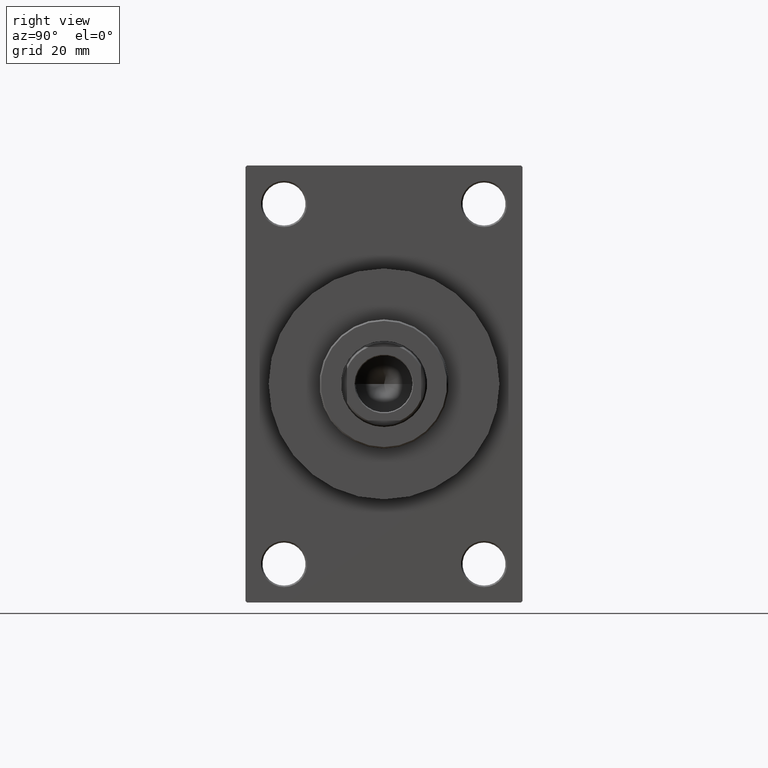
[diagram: clean part render]
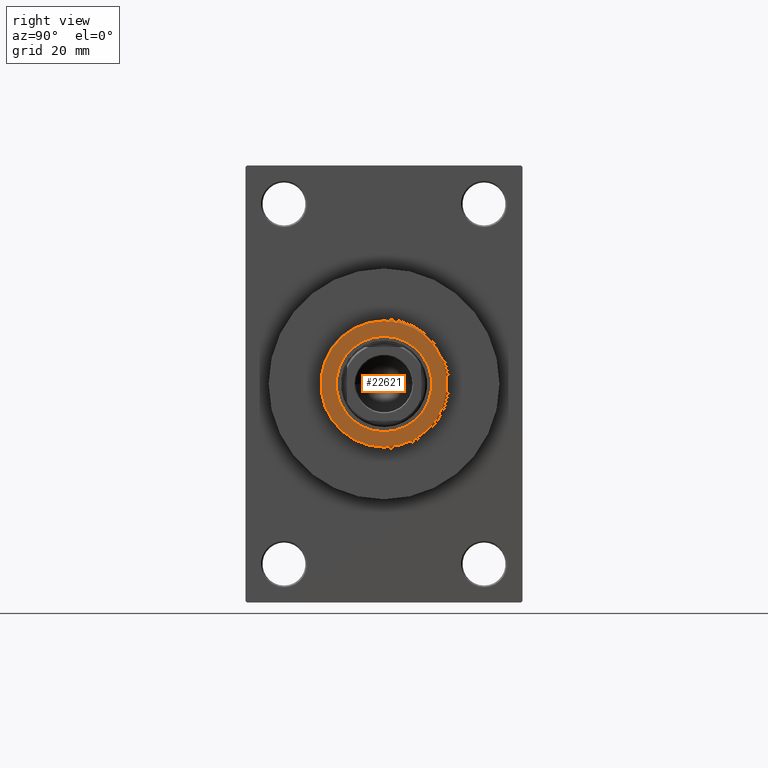
[diagram: same view with one face highlighted and labeled with its STEP entity id]
A machine part, right view. The second image highlights one B-rep face of the part: STEP entity #22621.
In plain terms, the highlighted planar face has unit normal (1, -0, -0).
Its self-contained STEP definition (entity closure, byte-faithful):
#374 = DIRECTION ( 'NONE',  ( 1.000000000000000000, 0.000000000000000000, 0.000000000000000000 ) ) ;
#2477 = VERTEX_POINT ( 'NONE', #25077 ) ;
#2581 = EDGE_LOOP ( 'NONE', ( #14294, #36106 ) ) ;
#4228 = VERTEX_POINT ( 'NONE', #23878 ) ;
#4554 = CARTESIAN_POINT ( 'NONE',  ( -20.50000000000001776, 0.000000000000000000, 54.26000000000000512 ) ) ;
#5246 = ORIENTED_EDGE ( 'NONE', *, *, #37925, .F. ) ;
#5883 = DIRECTION ( 'NONE',  ( 0.000000000000000000, 0.000000000000000000, 1.000000000000000000 ) ) ;
#6132 = VERTEX_POINT ( 'NONE', #4554 ) ;
#7599 = AXIS2_PLACEMENT_3D ( 'NONE', #30607, #35139, #41581 ) ;
#8112 = DIRECTION ( 'NONE',  ( 1.000000000000000000, 0.000000000000000000, 0.000000000000000000 ) ) ;
#11723 = AXIS2_PLACEMENT_3D ( 'NONE', #38574, #5883, #19738 ) ;
#12918 = EDGE_LOOP ( 'NONE', ( #14165, #5246 ) ) ;
#13168 = FACE_OUTER_BOUND ( 'NONE', #2581, .T. ) ;
#14165 = ORIENTED_EDGE ( 'NONE', *, *, #40603, .F. ) ;
#14294 = ORIENTED_EDGE ( 'NONE', *, *, #18363, .T. ) ;
#15217 = AXIS2_PLACEMENT_3D ( 'NONE', #39004, #43044, #39235 ) ;
#18363 = EDGE_CURVE ( 'NONE', #6132, #4228, #35062, .T. ) ;
#19557 = EDGE_CURVE ( 'NONE', #4228, #6132, #41173, .T. ) ;
#19738 = DIRECTION ( 'NONE',  ( 1.000000000000000000, 0.000000000000000000, 0.000000000000000000 ) ) ;
#20107 = FACE_BOUND ( 'NONE', #12918, .T. ) ;
#22441 = CARTESIAN_POINT ( 'NONE',  ( 0.000000000000000000, 0.000000000000000000, 54.26000000000000512 ) ) ;
#22621 = ADVANCED_FACE ( 'NONE', ( #20107, #13168 ), #38714, .T. ) ;
#23292 = AXIS2_PLACEMENT_3D ( 'NONE', #22441, #40809, #8112 ) ;
#23878 = CARTESIAN_POINT ( 'NONE',  ( 20.50000000000001776, 2.541142108230759057E-15, 54.26000000000000512 ) ) ;
#25077 = CARTESIAN_POINT ( 'NONE',  ( 15.50000000000000000, 0.000000000000000000, 54.26000000000000512 ) ) ;
#25559 = CIRCLE ( 'NONE', #23292, 15.50000000000000000 ) ;
#26222 = CIRCLE ( 'NONE', #11723, 15.50000000000000000 ) ;
#28561 = CARTESIAN_POINT ( 'NONE',  ( 0.000000000000000000, 0.000000000000000000, 54.26000000000000512 ) ) ;
#30607 = CARTESIAN_POINT ( 'NONE',  ( 0.000000000000000000, 0.000000000000000000, 54.26000000000000512 ) ) ;
#31656 = CARTESIAN_POINT ( 'NONE',  ( -15.50000000000000000, 1.898202538678397557E-15, 54.26000000000000512 ) ) ;
#35062 = CIRCLE ( 'NONE', #15217, 20.50000000000001776 ) ;
#35139 = DIRECTION ( 'NONE',  ( 0.000000000000000000, 0.000000000000000000, 1.000000000000000000 ) ) ;
#36106 = ORIENTED_EDGE ( 'NONE', *, *, #19557, .T. ) ;
#37925 = EDGE_CURVE ( 'NONE', #40280, #2477, #26222, .T. ) ;
#38574 = CARTESIAN_POINT ( 'NONE',  ( 0.000000000000000000, 0.000000000000000000, 54.26000000000000512 ) ) ;
#38714 = PLANE ( 'NONE',  #7599 ) ;
#39004 = CARTESIAN_POINT ( 'NONE',  ( 0.000000000000000000, 0.000000000000000000, 54.26000000000000512 ) ) ;
#39235 = DIRECTION ( 'NONE',  ( 1.000000000000000000, 0.000000000000000000, 0.000000000000000000 ) ) ;
#40231 = DIRECTION ( 'NONE',  ( 0.000000000000000000, 0.000000000000000000, 1.000000000000000000 ) ) ;
#40280 = VERTEX_POINT ( 'NONE', #31656 ) ;
#40603 = EDGE_CURVE ( 'NONE', #2477, #40280, #25559, .T. ) ;
#40809 = DIRECTION ( 'NONE',  ( 0.000000000000000000, 0.000000000000000000, 1.000000000000000000 ) ) ;
#41173 = CIRCLE ( 'NONE', #42685, 20.50000000000001776 ) ;
#41581 = DIRECTION ( 'NONE',  ( 1.000000000000000000, 0.000000000000000000, -0.000000000000000000 ) ) ;
#42685 = AXIS2_PLACEMENT_3D ( 'NONE', #28561, #40231, #374 ) ;
#43044 = DIRECTION ( 'NONE',  ( 0.000000000000000000, 0.000000000000000000, 1.000000000000000000 ) ) ;